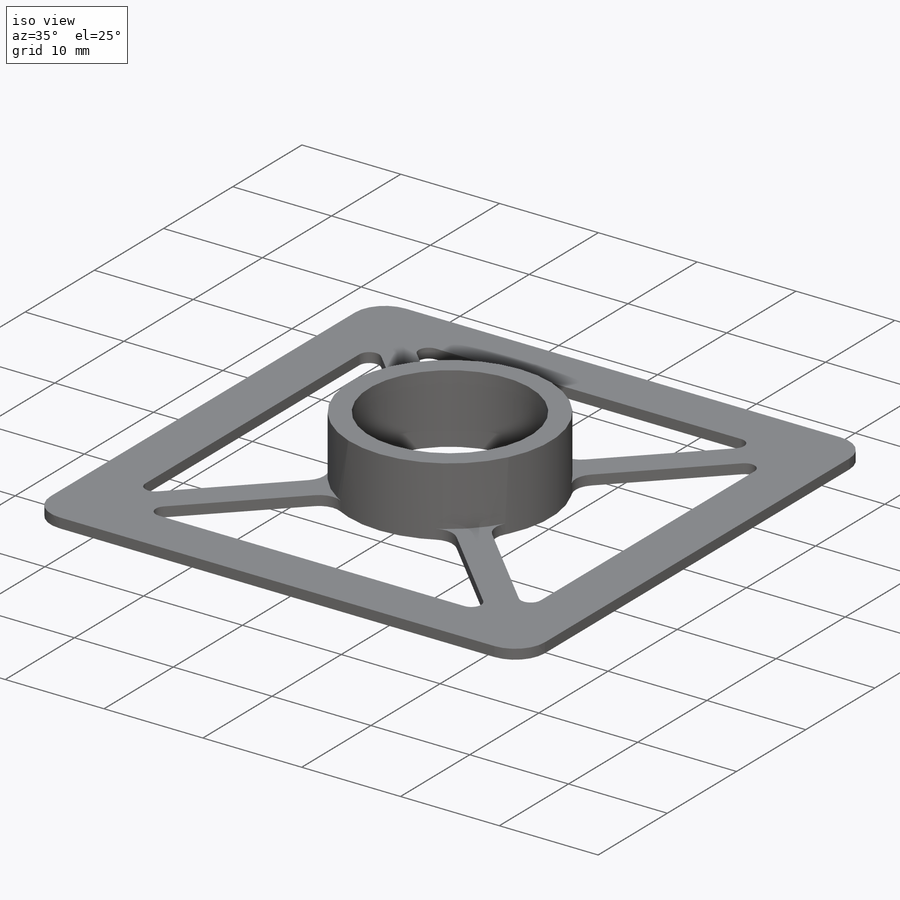
[diagram: iso view]
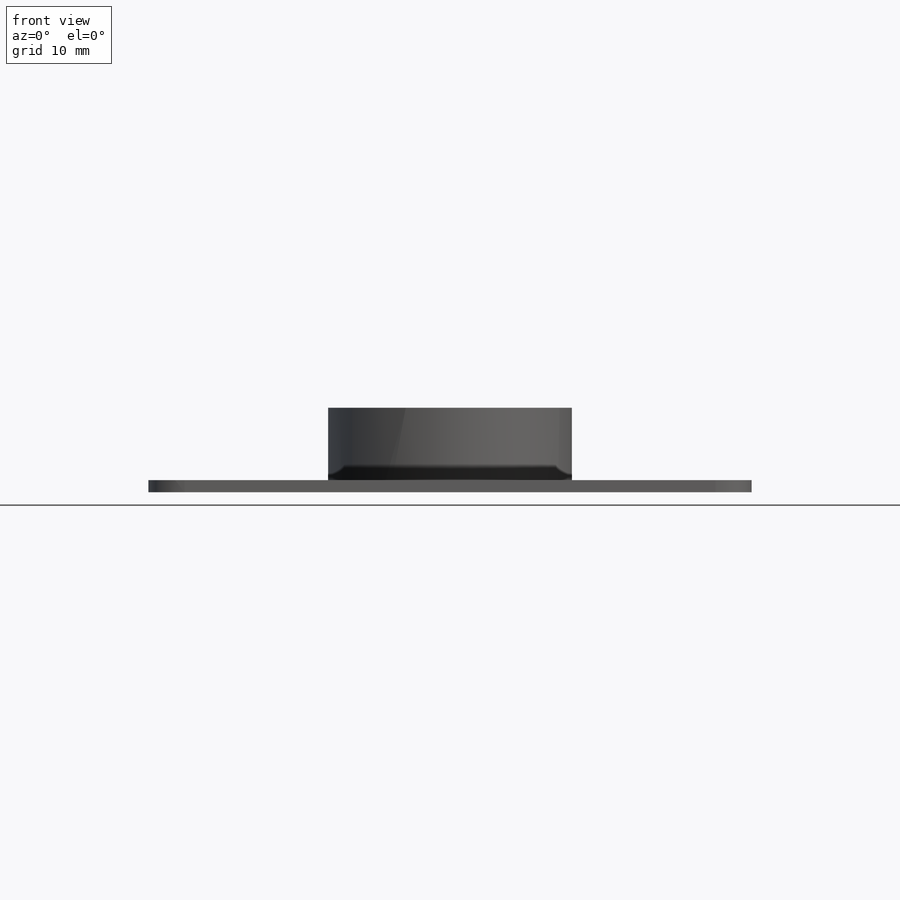
[diagram: front view]
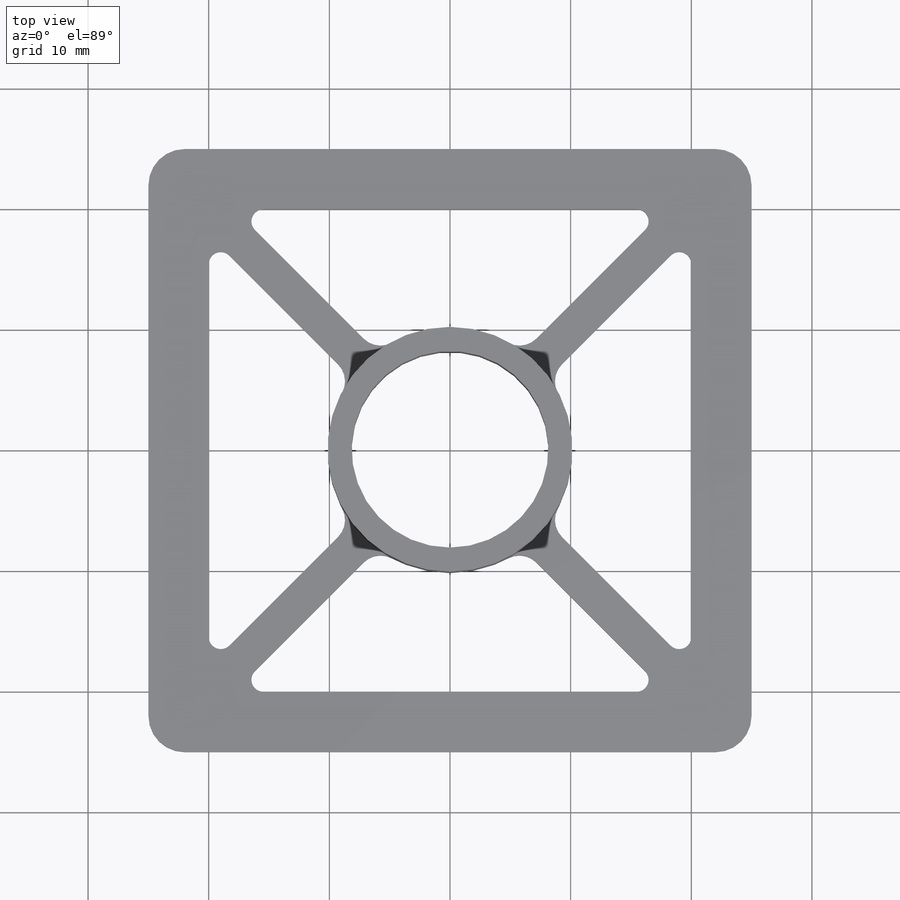
[diagram: top view]
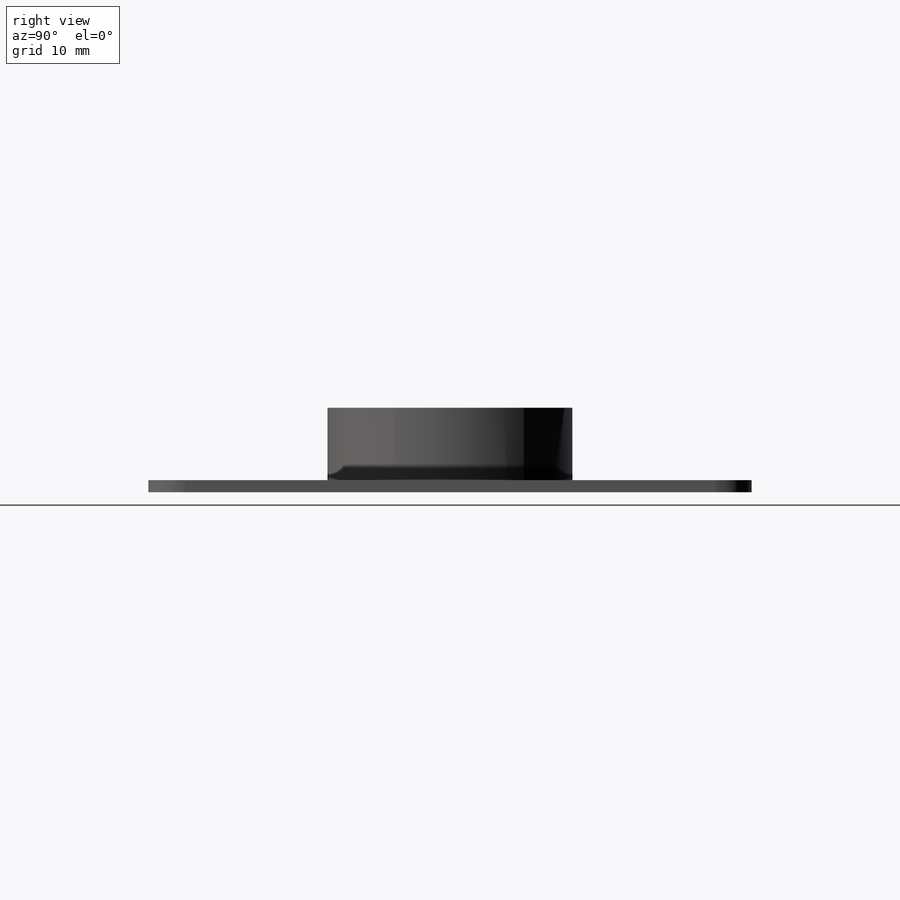
[diagram: right view]
SOLIDWORKS PART (.sldprt)
format: sldprt  version: not decoded by parser v0  size: 289,280 bytes
history: native  units: mm
features: sketch x8, sheet_metal_op x3, fillet x3, material x1, extrude x1 + 2 further entries (+12 scaffold rows collapsed; 2 parser-record rows omitted)
feature tree (32):
  scaffold x12  (default folders/planes/origin — collapsed)
  material  "Material <not specified>"
  sketch  "Sketch1"  dims[c1.D1=16.3mm c1.D3=50.0mm c1.D4=50.0mm c1.D5=5.0mm c1.D6=1.5mm c1.D7=1.5mm c1.D8=1.5mm c1.D9=~16.308018mm c2.D9=~2.573664deg c3.D9=1.5mm c3.D10=1.5mm c3.D11=1.5mm c3.D12=1.5mm c3.D13=1.5mm c3.D2=2.0mm c3.D1=0.6mm c4.D2=0.5 c4.D3=0.0deg c4.D6=~28.64789deg]
  sheet_metal_op  "Base-Flange1"
  fillet  "Fillet1"  Radius=3mm
  fillet  "Fillet2"  Radius=1mm
  fillet  "Fillet3"  Radius=2mm
  sketch  "Sketch2"  dims[D2=16.3mm D1=2.0mm]
  extrude  "Boss-Extrude1"  Depth=6mm
  sketch  "Bend-Lines1"
  sketch  "Bounding-Box1"
  sheet_metal_op  "Sheet-Metal(1)"
  "Flat-Pattern(1)"
  sketch  "Bend-Lines2"
  sketch  "Bounding-Box2"
  parser-record x2  (decoder bookkeeping rows leaked as tree rows — omitted from the tree; the rows remain in map.json)
  sheet_metal_op  "Sheet-Metal(2)"
  "Flat-Pattern(1)"
  sketch  "Bend-Lines2"
  sketch  "Bounding-Box2"
decode coverage: 6 of 15 modeling features carry decoded parameters; 2 rows unclassified (native names shown)
note: ~ marks probable driven/reference dimensions
note: suppression state not decoded; provenance and decode notes live in map.json
